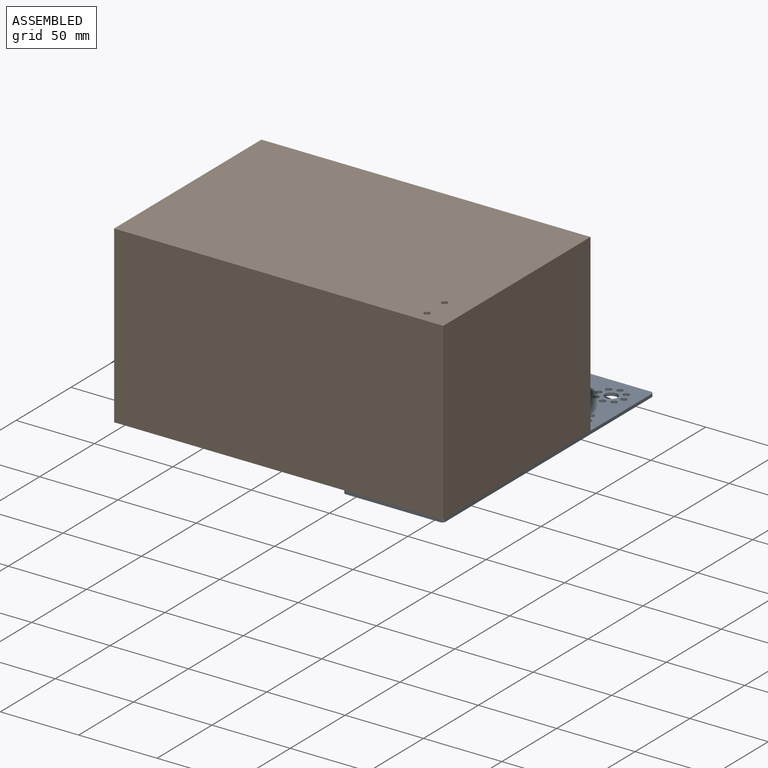
[diagram: assembled view]
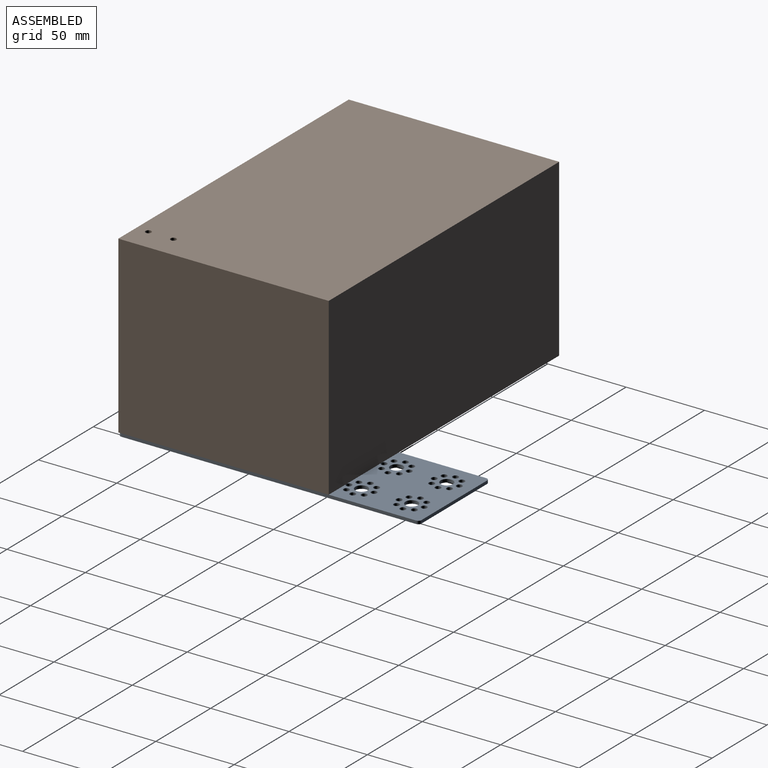
[diagram: assembled view, second angle]
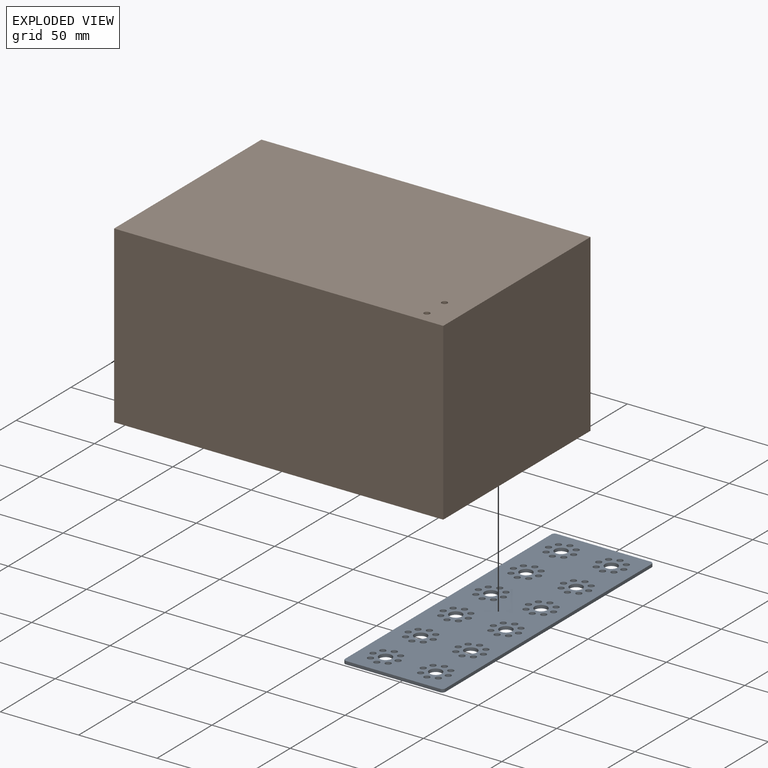
[diagram: exploded view]
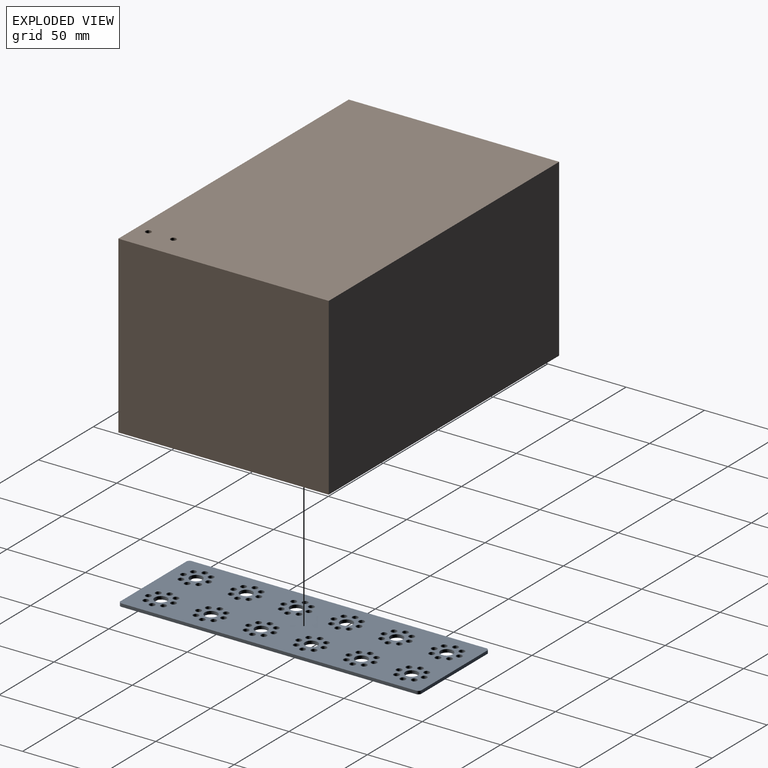
[diagram: exploded view, second angle]
ASSEMBLY  parts=2 mates=3
PART A: 118 faces, bbox 64x192x2 mm
  f0: plane 192.01x64.01mm, normal (0,0,1), area 10649.1mm2, adj f1,f2,f3,f4,f5,f6,f7,f8
  f1: cylinder r=2mm len=2mm, axis (0,0,-1), area 6.3mm2, adj f0,f2,f8,f117
  f2: plane 188x2mm, normal (-1,0,0), area 376mm2, adj f0,f1,f3,f117
  f3: cylinder r=2mm len=2mm, axis (0,0,-1), area 6.3mm2, adj f0,f2,f4,f117
  f4: plane 60x2mm, normal (0,-1,0), area 120mm2, adj f0,f3,f5,f117
  f5: cylinder r=2mm len=2mm, axis (0,0,-1), area 6.3mm2, adj f0,f4,f6,f117
  f6: plane 188x2mm, normal (1,0,0), area 376mm2, adj f0,f5,f7,f117
  f7: cylinder r=2mm len=2mm, axis (0,0,-1), area 6.3mm2, adj f0,f6,f8,f117
  f8: plane 60x2mm, normal (0,1,0), area 120mm2, adj f0,f1,f7,f117
  f9: cylinder r=4mm len=8mm, axis (0,0,1), area 50.3mm2, adj f0,f117
  f10: cylinder r=1.85mm len=3.7mm, axis (0,0,1), area 23.2mm2, adj f0,f117
  f11: cylinder r=1.85mm len=3.7mm, axis (0,0,1), area 23.2mm2, adj f0,f117
  f12: cylinder r=1.85mm len=3.7mm, axis (0,0,1), area 23.2mm2, adj f0,f117
  f13: cylinder r=1.85mm len=3.7mm, axis (0,0,1), area 23.2mm2, adj f0,f117
  f14: cylinder r=1.85mm len=3.7mm, axis (0,0,1), area 23.2mm2, adj f0,f117
  f15: cylinder r=1.85mm len=3.7mm, axis (0,0,1), area 23.2mm2, adj f0,f117
  f16: cylinder r=1.85mm len=3.7mm, axis (0,0,1), area 23.2mm2, adj f0,f117
  f17: cylinder r=1.85mm len=3.7mm, axis (0,0,1), area 23.2mm2, adj f0,f117
  f18: cylinder r=4mm len=8mm, axis (0,0,1), area 50.3mm2, adj f0,f117
  f19: cylinder r=1.85mm len=3.7mm, axis (0,0,1), area 23.2mm2, adj f0,f117
  f20: cylinder r=1.85mm len=3.7mm, axis (0,0,1), area 23.2mm2, adj f0,f117
  f21: cylinder r=1.85mm len=3.7mm, axis (0,0,1), area 23.2mm2, adj f0,f117
  f22: cylinder r=1.85mm len=3.7mm, axis (0,0,1), area 23.2mm2, adj f0,f117
  f23: cylinder r=1.85mm len=3.7mm, axis (0,0,1), area 23.2mm2, adj f0,f117
  f24: cylinder r=1.85mm len=3.7mm, axis (0,0,1), area 23.2mm2, adj f0,f117
  f25: cylinder r=1.85mm len=3.7mm, axis (0,0,1), area 23.2mm2, adj f0,f117
  f26: cylinder r=1.85mm len=3.7mm, axis (0,0,1), area 23.2mm2, adj f0,f117
  f27: cylinder r=4mm len=8mm, axis (0,0,1), area 50.3mm2, adj f0,f117
  f28: cylinder r=1.85mm len=3.7mm, axis (0,0,1), area 23.2mm2, adj f0,f117
  f29: cylinder r=1.85mm len=3.7mm, axis (0,0,1), area 23.2mm2, adj f0,f117
  f30: cylinder r=1.85mm len=3.7mm, axis (0,0,1), area 23.2mm2, adj f0,f117
  f31: cylinder r=1.85mm len=3.7mm, axis (0,0,1), area 23.2mm2, adj f0,f117
  f32: cylinder r=1.85mm len=3.7mm, axis (0,0,1), area 23.2mm2, adj f0,f117
  f33: cylinder r=1.85mm len=3.7mm, axis (0,0,1), area 23.2mm2, adj f0,f117
  f34: cylinder r=1.85mm len=3.7mm, axis (0,0,1), area 23.2mm2, adj f0,f117
  f35: cylinder r=1.85mm len=3.7mm, axis (0,0,1), area 23.2mm2, adj f0,f117
  f36: cylinder r=4mm len=8mm, axis (0,0,1), area 50.3mm2, adj f0,f117
  f37: cylinder r=1.85mm len=3.7mm, axis (0,0,1), area 23.2mm2, adj f0,f117
  f38: cylinder r=1.85mm len=3.7mm, axis (0,0,1), area 23.2mm2, adj f0,f117
  f39: cylinder r=1.85mm len=3.7mm, axis (0,0,1), area 23.2mm2, adj f0,f117
  f40: cylinder r=1.85mm len=3.7mm, axis (0,0,1), area 23.2mm2, adj f0,f117
  f41: cylinder r=1.85mm len=3.7mm, axis (0,0,1), area 23.2mm2, adj f0,f117
  f42: cylinder r=1.85mm len=3.7mm, axis (0,0,1), area 23.2mm2, adj f0,f117
  f43: cylinder r=1.85mm len=3.7mm, axis (0,0,1), area 23.2mm2, adj f0,f117
  f44: cylinder r=1.85mm len=3.7mm, axis (0,0,1), area 23.2mm2, adj f0,f117
  f45: cylinder r=4mm len=8mm, axis (0,0,1), area 50.3mm2, adj f0,f117
  f46: cylinder r=1.85mm len=3.7mm, axis (0,0,1), area 23.2mm2, adj f0,f117
  f47: cylinder r=1.85mm len=3.7mm, axis (0,0,1), area 23.2mm2, adj f0,f117
  f48: cylinder r=1.85mm len=3.7mm, axis (0,0,1), area 23.2mm2, adj f0,f117
  f49: cylinder r=1.85mm len=3.7mm, axis (0,0,1), area 23.2mm2, adj f0,f117
  f50: cylinder r=1.85mm len=3.7mm, axis (0,0,1), area 23.2mm2, adj f0,f117
  f51: cylinder r=1.85mm len=3.7mm, axis (0,0,1), area 23.2mm2, adj f0,f117
  f52: cylinder r=1.85mm len=3.7mm, axis (0,0,1), area 23.2mm2, adj f0,f117
  f53: cylinder r=1.85mm len=3.7mm, axis (0,0,1), area 23.2mm2, adj f0,f117
  f54: cylinder r=4mm len=8mm, axis (0,0,1), area 50.3mm2, adj f0,f117
  f55: cylinder r=1.85mm len=3.7mm, axis (0,0,1), area 23.2mm2, adj f0,f117
  f56: cylinder r=1.85mm len=3.7mm, axis (0,0,1), area 23.2mm2, adj f0,f117
  f57: cylinder r=1.85mm len=3.7mm, axis (0,0,1), area 23.2mm2, adj f0,f117
  f58: cylinder r=1.85mm len=3.7mm, axis (0,0,1), area 23.2mm2, adj f0,f117
  f59: cylinder r=1.85mm len=3.7mm, axis (0,0,1), area 23.2mm2, adj f0,f117
  f60: cylinder r=1.85mm len=3.7mm, axis (0,0,1), area 23.2mm2, adj f0,f117
  f61: cylinder r=1.85mm len=3.7mm, axis (0,0,1), area 23.2mm2, adj f0,f117
  f62: cylinder r=1.85mm len=3.7mm, axis (0,0,1), area 23.2mm2, adj f0,f117
  f63: cylinder r=4mm len=8mm, axis (0,0,1), area 50.3mm2, adj f0,f117
  f64: cylinder r=1.85mm len=3.7mm, axis (0,0,1), area 23.2mm2, adj f0,f117
  f65: cylinder r=1.85mm len=3.7mm, axis (0,0,1), area 23.2mm2, adj f0,f117
  f66: cylinder r=1.85mm len=3.7mm, axis (0,0,1), area 23.2mm2, adj f0,f117
  f67: cylinder r=1.85mm len=3.7mm, axis (0,0,1), area 23.2mm2, adj f0,f117
  f68: cylinder r=1.85mm len=3.7mm, axis (0,0,1), area 23.2mm2, adj f0,f117
  f69: cylinder r=1.85mm len=3.7mm, axis (0,0,1), area 23.2mm2, adj f0,f117
  f70: cylinder r=1.85mm len=3.7mm, axis (0,0,1), area 23.2mm2, adj f0,f117
  f71: cylinder r=1.85mm len=3.7mm, axis (0,0,1), area 23.2mm2, adj f0,f117
  f72: cylinder r=4mm len=8mm, axis (0,0,1), area 50.3mm2, adj f0,f117
  f73: cylinder r=1.85mm len=3.7mm, axis (0,0,1), area 23.2mm2, adj f0,f117
  f74: cylinder r=1.85mm len=3.7mm, axis (0,0,1), area 23.2mm2, adj f0,f117
  f75: cylinder r=1.85mm len=3.7mm, axis (0,0,1), area 23.2mm2, adj f0,f117
  f76: cylinder r=1.85mm len=3.7mm, axis (0,0,1), area 23.2mm2, adj f0,f117
  f77: cylinder r=1.85mm len=3.7mm, axis (0,0,1), area 23.2mm2, adj f0,f117
  f78: cylinder r=1.85mm len=3.7mm, axis (0,0,1), area 23.2mm2, adj f0,f117
  f79: cylinder r=1.85mm len=3.7mm, axis (0,0,1), area 23.2mm2, adj f0,f117
  f80: cylinder r=1.85mm len=3.7mm, axis (0,0,1), area 23.2mm2, adj f0,f117
  f81: cylinder r=4mm len=8mm, axis (0,0,1), area 50.3mm2, adj f0,f117
  f82: cylinder r=1.85mm len=3.7mm, axis (0,0,1), area 23.2mm2, adj f0,f117
  f83: cylinder r=1.85mm len=3.7mm, axis (0,0,1), area 23.2mm2, adj f0,f117
  f84: cylinder r=1.85mm len=3.7mm, axis (0,0,1), area 23.2mm2, adj f0,f117
  f85: cylinder r=1.85mm len=3.7mm, axis (0,0,1), area 23.2mm2, adj f0,f117
  f86: cylinder r=1.85mm len=3.7mm, axis (0,0,1), area 23.2mm2, adj f0,f117
  f87: cylinder r=1.85mm len=3.7mm, axis (0,0,1), area 23.2mm2, adj f0,f117
  f88: cylinder r=1.85mm len=3.7mm, axis (0,0,1), area 23.2mm2, adj f0,f117
  f89: cylinder r=1.85mm len=3.7mm, axis (0,0,1), area 23.2mm2, adj f0,f117
  f90: cylinder r=4mm len=8mm, axis (0,0,1), area 50.3mm2, adj f0,f117
  f91: cylinder r=1.85mm len=3.7mm, axis (0,0,1), area 23.2mm2, adj f0,f117
  f92: cylinder r=1.85mm len=3.7mm, axis (0,0,1), area 23.2mm2, adj f0,f117
  f93: cylinder r=1.85mm len=3.7mm, axis (0,0,1), area 23.2mm2, adj f0,f117
  f94: cylinder r=1.85mm len=3.7mm, axis (0,0,1), area 23.2mm2, adj f0,f117
  f95: cylinder r=1.85mm len=3.7mm, axis (0,0,1), area 23.2mm2, adj f0,f117
  f96: cylinder r=1.85mm len=3.7mm, axis (0,0,1), area 23.2mm2, adj f0,f117
  f97: cylinder r=1.85mm len=3.7mm, axis (0,0,1), area 23.2mm2, adj f0,f117
  f98: cylinder r=1.85mm len=3.7mm, axis (0,0,1), area 23.2mm2, adj f0,f117
  f99: cylinder r=4mm len=8mm, axis (0,0,1), area 50.3mm2, adj f0,f117
  f100: cylinder r=1.85mm len=3.7mm, axis (0,0,1), area 23.2mm2, adj f0,f117
  f101: cylinder r=1.85mm len=3.7mm, axis (0,0,1), area 23.2mm2, adj f0,f117
  f102: cylinder r=1.85mm len=3.7mm, axis (0,0,1), area 23.2mm2, adj f0,f117
  f103: cylinder r=1.85mm len=3.7mm, axis (0,0,1), area 23.2mm2, adj f0,f117
  f104: cylinder r=1.85mm len=3.7mm, axis (0,0,1), area 23.2mm2, adj f0,f117
  f105: cylinder r=1.85mm len=3.7mm, axis (0,0,1), area 23.2mm2, adj f0,f117
  f106: cylinder r=1.85mm len=3.7mm, axis (0,0,1), area 23.2mm2, adj f0,f117
  f107: cylinder r=1.85mm len=3.7mm, axis (0,0,1), area 23.2mm2, adj f0,f117
  f108: cylinder r=4mm len=8mm, axis (0,0,1), area 50.3mm2, adj f0,f117
  f109: cylinder r=1.85mm len=3.7mm, axis (0,0,1), area 23.2mm2, adj f0,f117
  f110: cylinder r=1.85mm len=3.7mm, axis (0,0,1), area 23.2mm2, adj f0,f117
  f111: cylinder r=1.85mm len=3.7mm, axis (0,0,1), area 23.2mm2, adj f0,f117
  f112: cylinder r=1.85mm len=3.7mm, axis (0,0,1), area 23.2mm2, adj f0,f117
  f113: cylinder r=1.85mm len=3.7mm, axis (0,0,1), area 23.2mm2, adj f0,f117
  f114: cylinder r=1.85mm len=3.7mm, axis (0,0,1), area 23.2mm2, adj f0,f117
  f115: cylinder r=1.85mm len=3.7mm, axis (0,0,1), area 23.2mm2, adj f0,f117
  f116: cylinder r=1.85mm len=3.7mm, axis (0,0,1), area 23.2mm2, adj f0,f117
  f117: plane 192.01x64.01mm, normal (0,0,-1), area 10649.1mm2, adj f1,f2,f3,f4,f5,f6,f7,f8
PART B: 8 faces, bbox 210x134.3x111.8 mm
  f0: plane 210.03x111.76mm, normal (0,1,0), area 23472.5mm2, adj f1,f3,f4,f5
  f1: plane 134.26x111.76mm, normal (-1,0,0), area 15004.8mm2, adj f0,f2,f4,f5
  f2: plane 210.03x111.76mm, normal (0,-1,0), area 23472.5mm2, adj f1,f3,f4,f5
  f3: plane 134.26x111.76mm, normal (1,0,0), area 15004.8mm2, adj f0,f2,f4,f5
  f4: plane 210.03x134.26mm, normal (0,0,1), area 28176.5mm2, adj f0,f1,f2,f3,f6,f7
  f5: plane 210.03x134.26mm, normal (0,0,-1), area 28176.5mm2, adj f0,f1,f2,f3,f6,f7
  f6: cylinder r=1.85mm len=111.76mm, axis (0,0,-1), area 1298.5mm2, adj f4,f5
  f7: cylinder r=1.85mm len=111.76mm, axis (0,0,-1), area 1298.2mm2, adj f4,f5
PLACE A t=(-115.89,-40.44,45.67)mm
PLACE B t=(-200.18,-0.22,47.67)mm
MATE planar A.f0 <-> B.f5  axis (0,0,1) through (-108.38,-34.78,47.67)mm
MATE planar A.f4 <-> B.f2  axis (0,-1,0) through (-99.89,-56.44,46.67)mm
MATE planar A.f6 <-> B.f3  axis (1,0,0) through (-67.89,39.56,46.67)mm
